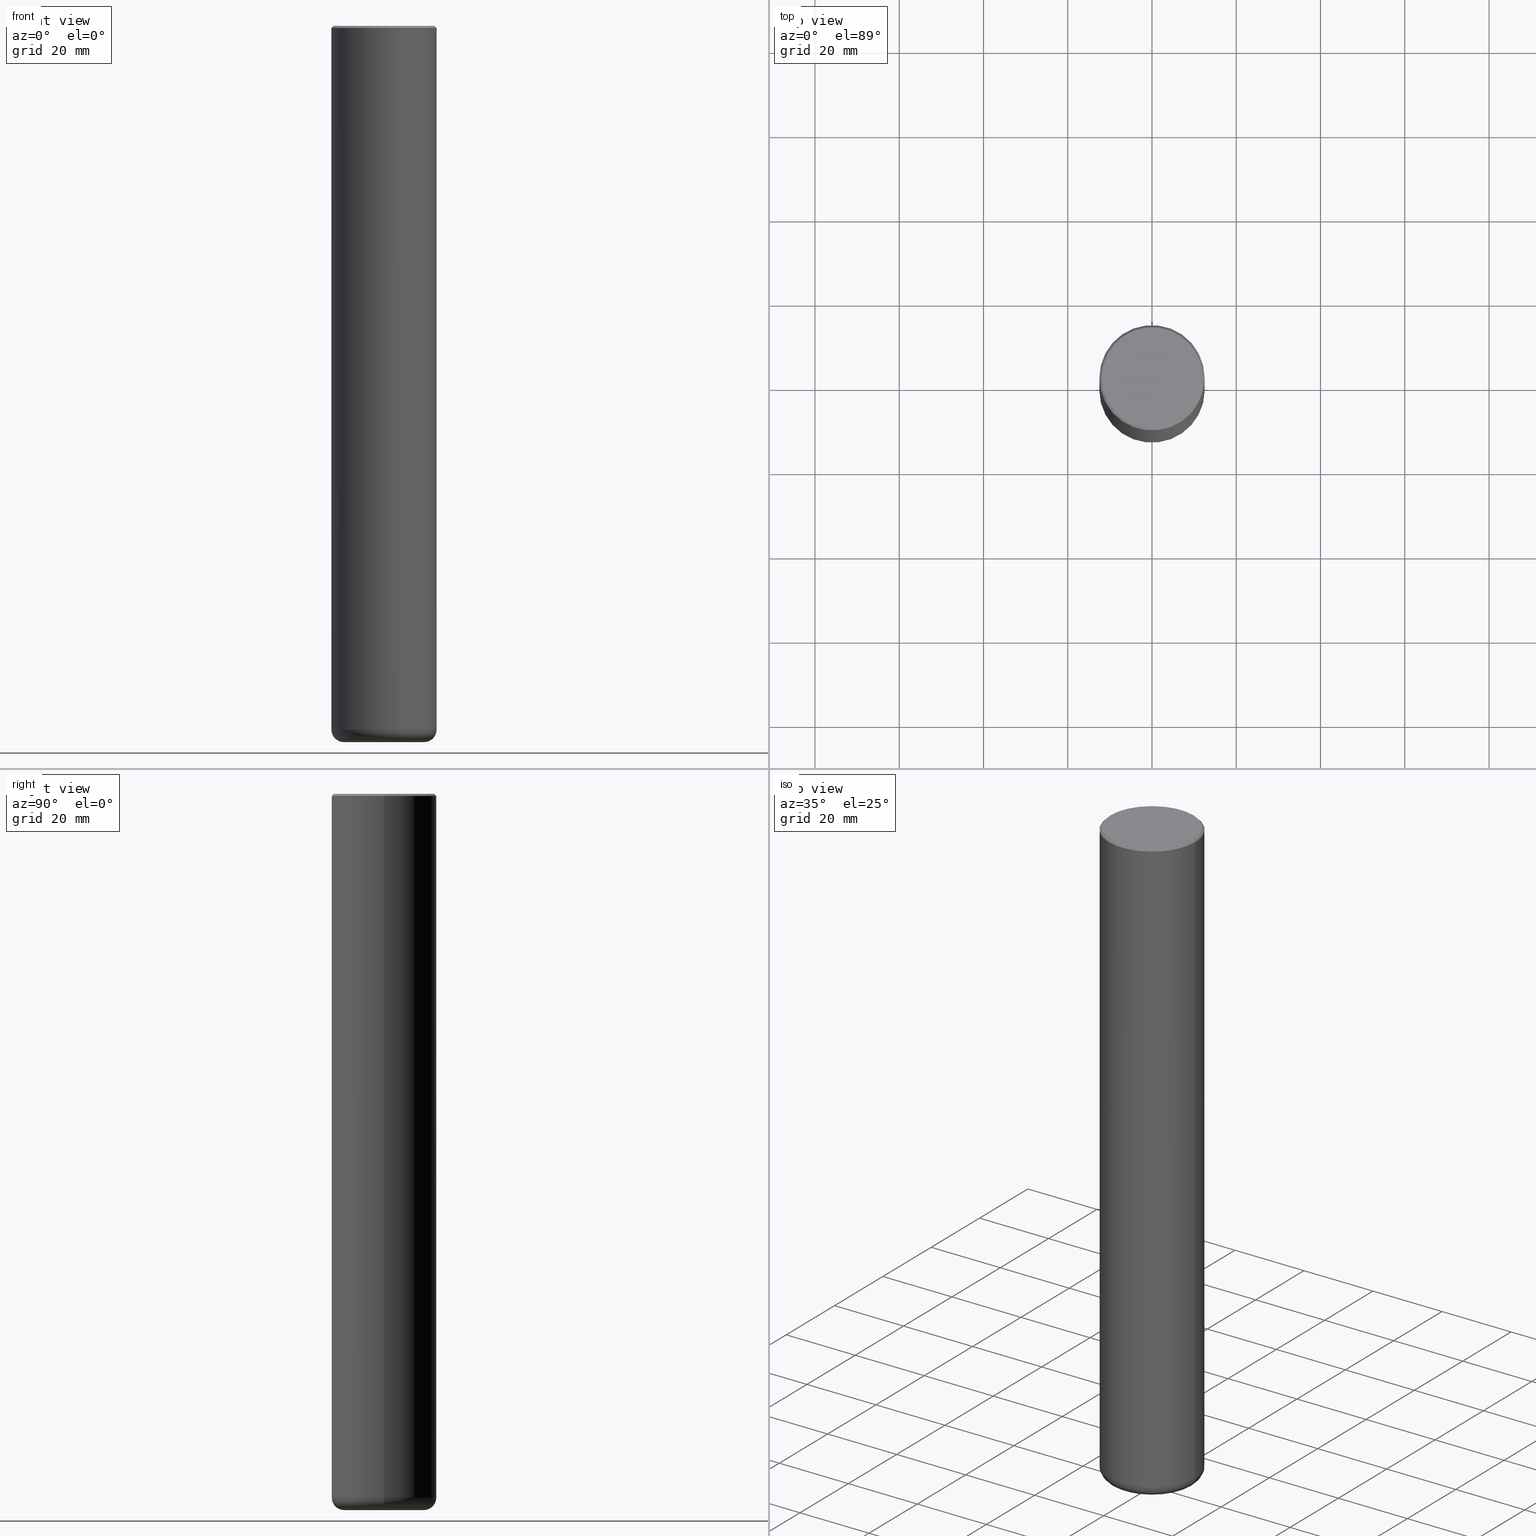
[diagram: canonical four-view strip — front | top / right | iso, engineering-drawing reading convention]
A machine part, canonical four-view strip (front | top / right | iso — engineering-drawing reading convention). The complete STEP part file that produces these views, byte-faithful:
ISO-10303-21;
HEADER;
FILE_DESCRIPTION (( 'STEP AP203' ),
    '1' );
FILE_NAME ('74911.STEP',
    '2024-05-02T19:30:10',
    ( '' ),
    ( '' ),
    'SwSTEP 2.0',
    'SolidWorks 2023',
    '' );
FILE_SCHEMA (( 'CONFIG_CONTROL_DESIGN' ));
ENDSEC;

DATA;
#1 = EDGE_CURVE ( 'NONE', #210, #290, #328, .T. ) ;
#2 = CARTESIAN_POINT ( 'NONE',  ( -6.889419334612450925E-45, 9.836264924510951028E-31, 2.817218243466271259E-16 ) ) ;
#3 = CARTESIAN_POINT ( 'NONE',  ( -0.4921499999999996988, -1.945885543258258788E-14, -6.574799999999999756 ) ) ;
#4 = CIRCLE ( 'NONE', #348, 0.4921500000000000319 ) ;
#5 = DIRECTION ( 'NONE',  ( -2.445468806185136877E-29, 3.491481338843145188E-15, 1.000000000000000000 ) ) ;
#6 = EDGE_CURVE ( 'NONE', #342, #290, #412, .T. ) ;
#7 = DIRECTION ( 'NONE',  ( -2.445468806185136877E-29, 3.491481338843145188E-15, 1.000000000000000000 ) ) ;
#8 = DIRECTION ( 'NONE',  ( -0.7071067811865453523, 2.468850131082234184E-15, -0.7071067811865496822 ) ) ;
#9 = CARTESIAN_POINT ( 'NONE',  ( 0.000000000000000000, 0.000000000000000000, 0.000000000000000000 ) ) ;
#10 = VECTOR ( 'NONE', #7, 39.37007874015748143 ) ;
#11 = APPROVAL_DATE_TIME ( #15, #96 ) ;
#12 = LINE ( 'NONE', #101, #360 ) ;
#13 = SHAPE_DEFINITION_REPRESENTATION ( #28, #114 ) ;
#14 = DIRECTION ( 'NONE',  ( 1.000000000000000000, -6.982962677686265922E-15, 0.000000000000000000 ) ) ;
#15 = DATE_AND_TIME ( #84, #89 ) ;
#16 = CARTESIAN_POINT ( 'NONE',  ( 3.002068150450346810E-28, -3.815684778453161736E-15, -6.692899999999999849 ) ) ;
#17 = DIRECTION ( 'NONE',  ( 1.000000000000000000, -6.982962677686265922E-15, 4.876176775795935793E-29 ) ) ;
#18 = ORIENTED_EDGE ( 'NONE', *, *, #1, .T. ) ;
#19 = AXIS2_PLACEMENT_3D ( 'NONE', #9, #247, #17 ) ;
#20 = CARTESIAN_POINT ( 'NONE',  ( 0.000000000000000000, 0.000000000000000000, 0.000000000000000000 ) ) ;
#21 = CALENDAR_DATE ( 2024, 2, 5 ) ;
#22 = ORIENTED_EDGE ( 'NONE', *, *, #133, .F. ) ;
#23 = ORIENTED_EDGE ( 'NONE', *, *, #71, .F. ) ;
#24 = EDGE_LOOP ( 'NONE', ( #90, #385 ) ) ;
#25 = TOROIDAL_SURFACE ( 'NONE', #164, 0.3740499999999999381, 0.1180999999999995248 ) ;
#26 = ORIENTED_EDGE ( 'NONE', *, *, #193, .F. ) ;
#27 = CC_DESIGN_APPROVAL ( #96, ( #245 ) ) ;
#28 = PRODUCT_DEFINITION_SHAPE ( 'NONE', 'NONE',  #263 ) ;
#29 = ORIENTED_EDGE ( 'NONE', *, *, #211, .T. ) ;
#30 = CIRCLE ( 'NONE', #228, 0.1180999999999994832 ) ;
#31 = APPROVAL_PERSON_ORGANIZATION ( #111, #279, #50 ) ;
#32 = DIRECTION ( 'NONE',  ( -6.982962677686266711E-15, -1.000000000000000000, 3.491481338843145583E-15 ) ) ;
#33 = CARTESIAN_POINT ( 'NONE',  ( 4.890937612370299433E-31, -6.982962677686328587E-17, -0.02000000000000010797 ) ) ;
#34 = LINE ( 'NONE', #232, #397 ) ;
#35 = VECTOR ( 'NONE', #369, 39.37007874015748143 ) ;
#36 = CARTESIAN_POINT ( 'NONE',  ( 0.4921500000000003094, -1.305534702220228032E-14, -2.754900000000000126 ) ) ;
#37 = DIRECTION ( 'NONE',  ( -2.445468806185136597E-29, 3.491481338843145583E-15, 1.000000000000000000 ) ) ;
#38 = EDGE_CURVE ( 'NONE', #351, #55, #30, .T. ) ;
#39 = DIRECTION ( 'NONE',  ( -2.445468806185136877E-29, 3.491481338843145188E-15, 1.000000000000000000 ) ) ;
#40 = CARTESIAN_POINT ( 'NONE',  ( 0.4921500000000000319, -3.446223716380123138E-15, -0.02000000000000010797 ) ) ;
#41 = APPROVAL_ROLE ( '' ) ;
#42 = DIRECTION ( 'NONE',  ( 1.000000000000000000, -6.982962677686265922E-15, 4.876176775795935793E-29 ) ) ;
#43 = DIRECTION ( 'NONE',  ( 1.000000000000000000, -6.982962677686265922E-15, 0.000000000000000000 ) ) ;
#44 = CIRCLE ( 'NONE', #184, 0.4721499999999997921 ) ;
#45 = VECTOR ( 'NONE', #8, 39.37007874015748143 ) ;
#46 = COORDINATED_UNIVERSAL_TIME_OFFSET ( 5, 0, .BEHIND. ) ;
#47 = DIRECTION ( 'NONE',  ( 1.000000000000000000, -6.982962677686265922E-15, 4.883557194083112901E-29 ) ) ;
#48 = CC_DESIGN_PERSON_AND_ORGANIZATION_ASSIGNMENT ( #72, #331, ( #191 ) ) ;
#49 = CARTESIAN_POINT ( 'NONE',  ( -0.4921500000000000319, 3.366835455046432873E-15, -0.02000000000000010797 ) ) ;
#50 = APPROVAL_ROLE ( '' ) ;
#51 = CARTESIAN_POINT ( 'NONE',  ( -6.889419334612450925E-45, 9.836264924510951028E-31, 2.817218243466271259E-16 ) ) ;
#52 = PERSON_AND_ORGANIZATION_ROLE ( 'design_owner' ) ;
#53 = ORIENTED_EDGE ( 'NONE', *, *, #133, .T. ) ;
#54 = DIRECTION ( 'NONE',  ( 1.000000000000000000, -6.982962677686265922E-15, 4.882029041999364017E-29 ) ) ;
#55 = VERTEX_POINT ( 'NONE', #197 ) ;
#56 = CC_DESIGN_SECURITY_CLASSIFICATION ( #245, ( #191 ) ) ;
#57 = EDGE_CURVE ( 'NONE', #384, #104, #44, .T. ) ;
#58 = AXIS2_PLACEMENT_3D ( 'NONE', #78, #138, #14 ) ;
#59 = ADVANCED_FACE ( 'NONE', ( #387 ), #122, .T. ) ;
#60 = DIRECTION ( 'NONE',  ( -1.000000000000000000, 6.982962677686265922E-15, -4.876176775795935793E-29 ) ) ;
#61 = AXIS2_PLACEMENT_3D ( 'NONE', #203, #231, #295 ) ;
#62 = CC_DESIGN_DATE_AND_TIME_ASSIGNMENT ( #304, #180, ( #245 ) ) ;
#63 = DIRECTION ( 'NONE',  ( 1.000000000000000000, -6.982962677686265133E-15, 0.000000000000000000 ) ) ;
#64 = LINE ( 'NONE', #325, #248 ) ;
#65 = EDGE_CURVE ( 'NONE', #116, #342, #64, .T. ) ;
#66 = DIRECTION ( 'NONE',  ( -1.000000000000000000, 7.105427357601001859E-15, 0.000000000000000000 ) ) ;
#67 = FACE_OUTER_BOUND ( 'NONE', #24, .T. ) ;
#68 = CALENDAR_DATE ( 2024, 2, 5 ) ;
#69 = DIRECTION ( 'NONE',  ( -2.445468806185136597E-29, 3.491481338843145583E-15, 1.000000000000000000 ) ) ;
#70 =( CONVERSION_BASED_UNIT ( 'INCH', #239 ) LENGTH_UNIT ( ) NAMED_UNIT ( #223 ) );
#71 = EDGE_CURVE ( 'NONE', #87, #351, #75, .T. ) ;
#72 = PERSON_AND_ORGANIZATION ( #356, #390 ) ;
#73 = DIRECTION ( 'NONE',  ( -2.445468806185136597E-29, 3.491481338843145583E-15, 1.000000000000000000 ) ) ;
#74 = APPROVAL_PERSON_ORGANIZATION ( #144, #170, #41 ) ;
#75 = CIRCLE ( 'NONE', #219, 0.3740499999999999381 ) ;
#76 = DATE_TIME_ROLE ( 'creation_date' ) ;
#77 = ORIENTED_EDGE ( 'NONE', *, *, #291, .T. ) ;
#78 = CARTESIAN_POINT ( 'NONE',  ( 6.739467482965618232E-29, -9.622173421717824390E-15, -2.755900000000000016 ) ) ;
#79 = CARTESIAN_POINT ( 'NONE',  ( 4.890937612370299433E-31, -6.982962677686328587E-17, -0.02000000000000010797 ) ) ;
#80 = ORIENTED_EDGE ( 'NONE', *, *, #298, .T. ) ;
#81 = ADVANCED_FACE ( 'NONE', ( #67 ), #230, .F. ) ;
#82 = DIRECTION ( 'NONE',  ( 1.000000000000000000, -6.982962677686264344E-15, 0.000000000000000000 ) ) ;
#83 = DIRECTION ( 'NONE',  ( 1.000000000000000000, 0.000000000000000000, 0.000000000000000000 ) ) ;
#84 = CALENDAR_DATE ( 2024, 2, 5 ) ;
#85 = VERTEX_POINT ( 'NONE', #235 ) ;
#86 = LINE ( 'NONE', #404, #229 ) ;
#87 = VERTEX_POINT ( 'NONE', #361 ) ;
#88 = AXIS2_PLACEMENT_3D ( 'NONE', #256, #366, #145 ) ;
#89 = LOCAL_TIME ( 15, 30, 10.00000000000000000, #403 ) ;
#90 = ORIENTED_EDGE ( 'NONE', *, *, #137, .T. ) ;
#91 = DESIGN_CONTEXT ( 'detailed design', #156, 'design' ) ;
#92 = ORIENTED_EDGE ( 'NONE', *, *, #284, .T. ) ;
#93 = CIRCLE ( 'NONE', #192, 0.1180999999999994832 ) ;
#94 = ORIENTED_EDGE ( 'NONE', *, *, #388, .F. ) ;
#95 = DIRECTION ( 'NONE',  ( -2.445468806185136597E-29, 3.491481338843145583E-15, 1.000000000000000000 ) ) ;
#96 = APPROVAL ( #381, 'UNSPECIFIED' ) ;
#97 = CARTESIAN_POINT ( 'NONE',  ( 0.4721499999999997921, -3.342703923013974974E-15, 2.817218243466503973E-16 ) ) ;
#98 = CIRCLE ( 'NONE', #272, 0.4921500000000003094 ) ;
#99 = CARTESIAN_POINT ( 'NONE',  ( 6.737022014159432629E-29, -9.618681940378981383E-15, -2.754900000000000126 ) ) ;
#100 = DIRECTION ( 'NONE',  ( 7.105427357601001859E-15, 1.000000000000000000, -3.491481338843145583E-15 ) ) ;
#101 = CARTESIAN_POINT ( 'NONE',  ( -0.4911499999999999755, -6.132342775032092501E-15, -2.755900000000000016 ) ) ;
#102 = PRODUCT_RELATED_PRODUCT_CATEGORY ( 'detail', '', ( #364 ) ) ;
#103 = FACE_OUTER_BOUND ( 'NONE', #118, .T. ) ;
#104 = VERTEX_POINT ( 'NONE', #97 ) ;
#105 = FACE_OUTER_BOUND ( 'NONE', #215, .T. ) ;
#106 = CONICAL_SURFACE ( 'NONE', #207, 0.4911499999999999755, 0.7853981633977213939 ) ;
#107 = PERSON_AND_ORGANIZATION_ROLE ( 'classification_officer' ) ;
#108 = DIRECTION ( 'NONE',  ( 2.438088387897960049E-29, -3.491481338843145188E-15, -1.000000000000000000 ) ) ;
#109 = DATE_AND_TIME ( #21, #123 ) ;
#110 = DIRECTION ( 'NONE',  ( -0.7071067811867406405, 7.493145998871051513E-15, 0.7071067811863543939 ) ) ;
#111 = PERSON_AND_ORGANIZATION ( #356, #390 ) ;
#112 = ORIENTED_EDGE ( 'NONE', *, *, #284, .F. ) ;
#113 = CARTESIAN_POINT ( 'NONE',  ( -0.4921499999999999764, -1.279204639012853613E-14, -2.755900000000000016 ) ) ;
#114 = ADVANCED_BREP_SHAPE_REPRESENTATION ( '74911', ( #396, #410, #220 ), #399 ) ;
#115 = PERSON_AND_ORGANIZATION ( #356, #390 ) ;
#116 = VERTEX_POINT ( 'NONE', #36 ) ;
#117 = PERSON_AND_ORGANIZATION ( #356, #390 ) ;
#118 = EDGE_LOOP ( 'NONE', ( #411, #53, #415, #94 ) ) ;
#119 = ADVANCED_FACE ( 'NONE', ( #354 ), #417, .T. ) ;
#120 = CARTESIAN_POINT ( 'NONE',  ( -0.4921500000000003094, -1.347319709534586880E-15, -2.754900000000000126 ) ) ;
#121 = ORIENTED_EDGE ( 'NONE', *, *, #161, .F. ) ;
#122 = CONICAL_SURFACE ( 'NONE', #61, 0.4911499999999999755, 0.7853981633977213939 ) ;
#123 = LOCAL_TIME ( 15, 30, 10.00000000000000000, #46 ) ;
#124 = ORIENTED_EDGE ( 'NONE', *, *, #211, .F. ) ;
#125 = EDGE_CURVE ( 'NONE', #116, #210, #98, .T. ) ;
#126 = VERTEX_POINT ( 'NONE', #3 ) ;
#127 = EDGE_LOOP ( 'NONE', ( #121, #321, #336, #26 ) ) ;
#128 = ADVANCED_FACE ( 'NONE', ( #226 ), #269, .F. ) ;
#129 = DIRECTION ( 'NONE',  ( 2.438088387897960049E-29, -3.491481338843145188E-15, -1.000000000000000000 ) ) ;
#130 = DIRECTION ( 'NONE',  ( 1.000000000000000000, -6.982962677686265922E-15, 0.000000000000000000 ) ) ;
#131 = APPLICATION_CONTEXT ( 'configuration controlled 3d designs of mechanical parts and assemblies' ) ;
#132 = LINE ( 'NONE', #392, #10 ) ;
#133 = EDGE_CURVE ( 'NONE', #126, #261, #132, .T. ) ;
#134 = CARTESIAN_POINT ( 'NONE',  ( 0.4921499999999999764, -1.305883850354112017E-14, -2.755900000000000016 ) ) ;
#135 = CARTESIAN_POINT ( 'NONE',  ( -0.4911499999999999755, -6.127044320683869310E-15, -2.755900000000000016 ) ) ;
#136 = CARTESIAN_POINT ( 'NONE',  ( 0.3740499999999999381, -2.598011264233183059E-14, -6.692899999999998961 ) ) ;
#137 = EDGE_CURVE ( 'NONE', #157, #261, #257, .T. ) ;
#138 = DIRECTION ( 'NONE',  ( -2.445468806185136597E-29, 3.491481338843145583E-15, 1.000000000000000000 ) ) ;
#139 = CARTESIAN_POINT ( 'NONE',  ( 1.607846830690603466E-28, -2.295579150662591525E-14, -6.574799999999999756 ) ) ;
#140 = CIRCLE ( 'NONE', #88, 0.3740499999999999381 ) ;
#141 = SECURITY_CLASSIFICATION_LEVEL ( 'unclassified' ) ;
#142 = DIRECTION ( 'NONE',  ( -1.000000000000000000, 6.982962677686265922E-15, -4.876176775795935793E-29 ) ) ;
#143 = DIRECTION ( 'NONE',  ( -2.445468806185136597E-29, 3.491481338843145583E-15, 1.000000000000000000 ) ) ;
#144 = PERSON_AND_ORGANIZATION ( #356, #390 ) ;
#145 = DIRECTION ( 'NONE',  ( 1.000000000000000000, -6.982962677686265133E-15, 0.000000000000000000 ) ) ;
#146 = CARTESIAN_POINT ( 'NONE',  ( 6.737022014159432629E-29, -9.618681940378981383E-15, -2.754900000000000126 ) ) ;
#147 = EDGE_CURVE ( 'NONE', #85, #116, #34, .T. ) ;
#148 = CIRCLE ( 'NONE', #353, 0.4921500000000000319 ) ;
#149 = DIRECTION ( 'NONE',  ( 1.000000000000000000, -6.982962677686266711E-15, 4.876176775795935232E-29 ) ) ;
#150 = ORIENTED_EDGE ( 'NONE', *, *, #322, .F. ) ;
#151 = EDGE_LOOP ( 'NONE', ( #258, #347, #286, #250 ) ) ;
#152 = ORIENTED_EDGE ( 'NONE', *, *, #341, .F. ) ;
#153 = AXIS2_PLACEMENT_3D ( 'NONE', #305, #278, #42 ) ;
#154 = CC_DESIGN_PERSON_AND_ORGANIZATION_ASSIGNMENT ( #206, #249, ( #191 ) ) ;
#155 = ORIENTED_EDGE ( 'NONE', *, *, #388, .T. ) ;
#156 = APPLICATION_CONTEXT ( 'configuration controlled 3d designs of mechanical parts and assemblies' ) ;
#157 = VERTEX_POINT ( 'NONE', #134 ) ;
#158 = AXIS2_PLACEMENT_3D ( 'NONE', #146, #37, #393 ) ;
#159 = LOCAL_TIME ( 15, 30, 10.00000000000000000, #307 ) ;
#160 = DIRECTION ( 'NONE',  ( -2.445468806185136597E-29, 3.491481338843145583E-15, 1.000000000000000000 ) ) ;
#161 = EDGE_CURVE ( 'NONE', #87, #126, #93, .T. ) ;
#162 = DIRECTION ( 'NONE',  ( 2.445468806185136597E-29, -3.491481338843145583E-15, -1.000000000000000000 ) ) ;
#163 = DIRECTION ( 'NONE',  ( 0.7071067811867406405, -2.468850131084279700E-15, 0.7071067811863543939 ) ) ;
#164 = AXIS2_PLACEMENT_3D ( 'NONE', #340, #69, #47 ) ;
#165 = CC_DESIGN_PERSON_AND_ORGANIZATION_ASSIGNMENT ( #171, #107, ( #245 ) ) ;
#166 = DIRECTION ( 'NONE',  ( -2.445468806185136597E-29, 3.491481338843145583E-15, 1.000000000000000000 ) ) ;
#167 = DIRECTION ( 'NONE',  ( -1.000000000000000000, 6.982962677686265922E-15, 0.000000000000000000 ) ) ;
#168 = CARTESIAN_POINT ( 'NONE',  ( 6.739467482965618232E-29, -9.622173421717824390E-15, -2.755900000000000016 ) ) ;
#169 = DIRECTION ( 'NONE',  ( 1.000000000000000000, -6.982962677686265922E-15, 4.876176775795935793E-29 ) ) ;
#170 = APPROVAL ( #376, 'UNSPECIFIED' ) ;
#171 = PERSON_AND_ORGANIZATION ( #356, #390 ) ;
#172 = DIRECTION ( 'NONE',  ( -2.445468806185136597E-29, 3.491481338843145583E-15, 1.000000000000000000 ) ) ;
#173 = AXIS2_PLACEMENT_3D ( 'NONE', #391, #357, #130 ) ;
#174 = MECHANICAL_CONTEXT ( 'NONE', #131, 'mechanical' ) ;
#175 = DIRECTION ( 'NONE',  ( 0.7071067811865453523, -7.319954787623248157E-15, -0.7071067811865496822 ) ) ;
#176 = FACE_OUTER_BOUND ( 'NONE', #414, .T. ) ;
#177 = ORIENTED_EDGE ( 'NONE', *, *, #201, .F. ) ;
#178 = DIRECTION ( 'NONE',  ( -2.445468806185136597E-29, 3.491481338843145583E-15, 1.000000000000000000 ) ) ;
#179 = CARTESIAN_POINT ( 'NONE',  ( 6.739467482965618232E-29, -9.622173421717824390E-15, -2.755900000000000016 ) ) ;
#180 = DATE_TIME_ROLE ( 'classification_date' ) ;
#181 = ORIENTED_EDGE ( 'NONE', *, *, #1, .F. ) ;
#182 = CYLINDRICAL_SURFACE ( 'NONE', #323, 0.4921500000000001984 ) ;
#183 = CC_DESIGN_PERSON_AND_ORGANIZATION_ASSIGNMENT ( #115, #313, ( #263 ) ) ;
#184 = AXIS2_PLACEMENT_3D ( 'NONE', #2, #160, #264 ) ;
#185 = ORIENTED_EDGE ( 'NONE', *, *, #242, .F. ) ;
#186 = DIRECTION ( 'NONE',  ( -2.445468806185136597E-29, 3.491481338843145583E-15, 1.000000000000000000 ) ) ;
#187 = UNCERTAINTY_MEASURE_WITH_UNIT (LENGTH_MEASURE( 1.000000000000000082E-05 ), #70, 'distance_accuracy_value', 'NONE');
#188 = VERTEX_POINT ( 'NONE', #135 ) ;
#189 = EDGE_LOOP ( 'NONE', ( #309, #92 ) ) ;
#190 = CC_DESIGN_DATE_AND_TIME_ASSIGNMENT ( #109, #76, ( #263 ) ) ;
#191 = PRODUCT_DEFINITION_FORMATION_WITH_SPECIFIED_SOURCE ( 'ANY', '', #364, .NOT_KNOWN. ) ;
#192 = AXIS2_PLACEMENT_3D ( 'NONE', #268, #100, #66 ) ;
#193 = EDGE_CURVE ( 'NONE', #126, #55, #148, .T. ) ;
#194 = CIRCLE ( 'NONE', #373, 0.4921500000000000319 ) ;
#195 = CARTESIAN_POINT ( 'NONE',  ( -0.4921500000000001984, 3.496936074043334475E-15, -2.420853904668952630E-29 ) ) ;
#196 = ADVANCED_FACE ( 'NONE', ( #103 ), #274, .T. ) ;
#197 = CARTESIAN_POINT ( 'NONE',  ( 0.4921499999999996988, -2.639245658844920945E-14, -6.574799999999999756 ) ) ;
#198 = DIRECTION ( 'NONE',  ( -2.445468806185136597E-29, 3.491481338843145583E-15, 1.000000000000000000 ) ) ;
#199 = CARTESIAN_POINT ( 'NONE',  ( 1.607846830690603466E-28, -2.295579150662591525E-14, -6.574799999999999756 ) ) ;
#200 = CIRCLE ( 'NONE', #266, 0.4721499999999997921 ) ;
#201 = EDGE_CURVE ( 'NONE', #85, #188, #292, .T. ) ;
#202 = DIRECTION ( 'NONE',  ( 2.445468806185136597E-29, -3.491481338843145583E-15, -1.000000000000000000 ) ) ;
#203 = CARTESIAN_POINT ( 'NONE',  ( 6.739467482965618232E-29, -9.622173421717824390E-15, -2.755900000000000016 ) ) ;
#204 = CARTESIAN_POINT ( 'NONE',  ( 6.739467482965618232E-29, -9.622173421717824390E-15, -2.755900000000000016 ) ) ;
#205 = FACE_OUTER_BOUND ( 'NONE', #402, .T. ) ;
#206 = PERSON_AND_ORGANIZATION ( #356, #390 ) ;
#207 = AXIS2_PLACEMENT_3D ( 'NONE', #238, #73, #82 ) ;
#208 = LOCAL_TIME ( 15, 30, 10.00000000000000000, #367 ) ;
#209 = APPROVAL_STATUS ( 'not_yet_approved' ) ;
#210 = VERTEX_POINT ( 'NONE', #120 ) ;
#211 = EDGE_CURVE ( 'NONE', #104, #342, #86, .T. ) ;
#212 = DIRECTION ( 'NONE',  ( 1.000000000000000000, -6.982962677686264344E-15, 0.000000000000000000 ) ) ;
#213 = ORIENTED_EDGE ( 'NONE', *, *, #147, .F. ) ;
#214 = DIRECTION ( 'NONE',  ( -2.445468806185136597E-29, 3.491481338843145583E-15, 1.000000000000000000 ) ) ;
#215 = EDGE_LOOP ( 'NONE', ( #177, #244 ) ) ;
#216 = FACE_OUTER_BOUND ( 'NONE', #254, .T. ) ;
#217 = AXIS2_PLACEMENT_3D ( 'NONE', #267, #297, #324 ) ;
#218 = ADVANCED_FACE ( 'NONE', ( #216 ), #282, .T. ) ;
#219 = AXIS2_PLACEMENT_3D ( 'NONE', #394, #198, #63 ) ;
#220 = AXIS2_PLACEMENT_3D ( 'NONE', #252, #380, #83 ) ;
#221 = ORIENTED_EDGE ( 'NONE', *, *, #65, .F. ) ;
#222 = EDGE_LOOP ( 'NONE', ( #152, #77, #265, #150 ) ) ;
#223 = DIMENSIONAL_EXPONENTS ( 1.000000000000000000, 0.000000000000000000, 0.000000000000000000, 0.000000000000000000, 0.000000000000000000, 0.000000000000000000, 0.000000000000000000 ) ;
#224 = ADVANCED_FACE ( 'NONE', ( #379 ), #311, .T. ) ;
#225 = ORIENTED_EDGE ( 'NONE', *, *, #125, .T. ) ;
#226 = FACE_OUTER_BOUND ( 'NONE', #189, .T. ) ;
#227 = ADVANCED_FACE ( 'NONE', ( #374 ), #106, .T. ) ;
#228 = AXIS2_PLACEMENT_3D ( 'NONE', #300, #32, #329 ) ;
#229 = VECTOR ( 'NONE', #175, 39.37007874015748143 ) ;
#230 = PLANE ( 'NONE',  #418 ) ;
#231 = DIRECTION ( 'NONE',  ( -2.445468806185136597E-29, 3.491481338843145583E-15, 1.000000000000000000 ) ) ;
#232 = CARTESIAN_POINT ( 'NONE',  ( 0.4911499999999999755, -1.305185554086343257E-14, -2.755900000000000016 ) ) ;
#233 = VECTOR ( 'NONE', #39, 39.37007874015748143 ) ;
#234 = CIRCLE ( 'NONE', #58, 0.4921499999999999764 ) ;
#235 = CARTESIAN_POINT ( 'NONE',  ( 0.4911499999999999755, -1.305185554086343257E-14, -2.755900000000000016 ) ) ;
#236 = CC_DESIGN_APPROVAL ( #279, ( #191 ) ) ;
#237 = PLANE ( 'NONE',  #283 ) ;
#238 = CARTESIAN_POINT ( 'NONE',  ( 6.739467482965618232E-29, -9.622173421717824390E-15, -2.755900000000000016 ) ) ;
#239 = LENGTH_MEASURE_WITH_UNIT ( LENGTH_MEASURE( 0.02539999999999999897 ), #401 );
#240 = DATE_AND_TIME ( #68, #208 ) ;
#241 = LINE ( 'NONE', #395, #35 ) ;
#242 = EDGE_CURVE ( 'NONE', #351, #87, #140, .T. ) ;
#243 = CALENDAR_DATE ( 2024, 2, 5 ) ;
#244 = ORIENTED_EDGE ( 'NONE', *, *, #291, .F. ) ;
#245 = SECURITY_CLASSIFICATION ( '', '', #141 ) ;
#246 = DIRECTION ( 'NONE',  ( 1.000000000000000000, -6.982962677686266711E-15, 4.876176775795935232E-29 ) ) ;
#247 = DIRECTION ( 'NONE',  ( -2.445468806185136597E-29, 3.491481338843145583E-15, 1.000000000000000000 ) ) ;
#248 = VECTOR ( 'NONE', #5, 39.37007874015748143 ) ;
#249 = PERSON_AND_ORGANIZATION_ROLE ( 'design_supplier' ) ;
#250 = ORIENTED_EDGE ( 'NONE', *, *, #38, .F. ) ;
#251 = DIRECTION ( 'NONE',  ( 1.000000000000000000, -6.982962677686264344E-15, 0.000000000000000000 ) ) ;
#252 = CARTESIAN_POINT ( 'NONE',  ( 0.000000000000000000, 0.000000000000000000, 0.000000000000000000 ) ) ;
#253 = COORDINATED_UNIVERSAL_TIME_OFFSET ( 5, 0, .BEHIND. ) ;
#254 = EDGE_LOOP ( 'NONE', ( #181, #316, #345, #413 ) ) ;
#255 = ADVANCED_FACE ( 'NONE', ( #273 ), #25, .T. ) ;
#256 = CARTESIAN_POINT ( 'NONE',  ( 1.636727817291649742E-28, -2.336813545274328465E-14, -6.692899999999998961 ) ) ;
#257 = CIRCLE ( 'NONE', #173, 0.4921499999999999764 ) ;
#258 = ORIENTED_EDGE ( 'NONE', *, *, #242, .T. ) ;
#259 = EDGE_LOOP ( 'NONE', ( #277, #339, #318, #213 ) ) ;
#260 = EDGE_CURVE ( 'NONE', #261, #157, #234, .T. ) ;
#261 = VERTEX_POINT ( 'NONE', #113 ) ;
#262 = AXIS2_PLACEMENT_3D ( 'NONE', #139, #375, #358 ) ;
#263 = PRODUCT_DEFINITION ( 'UNKNOWN', '', #191, #91 ) ;
#264 = DIRECTION ( 'NONE',  ( 1.000000000000000000, -6.982962677686265922E-15, 4.882029041999364017E-29 ) ) ;
#265 = ORIENTED_EDGE ( 'NONE', *, *, #147, .T. ) ;
#266 = AXIS2_PLACEMENT_3D ( 'NONE', #51, #178, #54 ) ;
#267 = CARTESIAN_POINT ( 'NONE',  ( 4.890937612370299433E-31, -6.982962677686328587E-17, -0.02000000000000010797 ) ) ;
#268 = CARTESIAN_POINT ( 'NONE',  ( -0.3740499999999999381, -2.029800640351526055E-14, -6.574799999999999756 ) ) ;
#269 = PLANE ( 'NONE',  #343 ) ;
#270 = CARTESIAN_POINT ( 'NONE',  ( 4.890937612370299433E-31, -6.982962677686328587E-17, -0.02000000000000010797 ) ) ;
#271 = APPLICATION_PROTOCOL_DEFINITION ( 'international standard', 'config_control_design', 1994, #131 ) ;
#272 = AXIS2_PLACEMENT_3D ( 'NONE', #99, #95, #326 ) ;
#273 = FACE_OUTER_BOUND ( 'NONE', #127, .T. ) ;
#274 = CYLINDRICAL_SURFACE ( 'NONE', #153, 0.4921499999999999764 ) ;
#275 = CARTESIAN_POINT ( 'NONE',  ( 1.607846830690603466E-28, -2.295579150662591525E-14, -6.574799999999999756 ) ) ;
#276 = APPROVAL_ROLE ( '' ) ;
#277 = ORIENTED_EDGE ( 'NONE', *, *, #201, .T. ) ;
#278 = DIRECTION ( 'NONE',  ( -2.445468806185136597E-29, 3.491481338843145583E-15, 1.000000000000000000 ) ) ;
#279 = APPROVAL ( #209, 'UNSPECIFIED' ) ;
#280 = DATE_AND_TIME ( #243, #159 ) ;
#281 = ORIENTED_EDGE ( 'NONE', *, *, #298, .F. ) ;
#282 = CYLINDRICAL_SURFACE ( 'NONE', #289, 0.4921500000000001984 ) ;
#283 = AXIS2_PLACEMENT_3D ( 'NONE', #179, #303, #169 ) ;
#284 = EDGE_CURVE ( 'NONE', #104, #384, #200, .T. ) ;
#285 = LINE ( 'NONE', #408, #45 ) ;
#286 = ORIENTED_EDGE ( 'NONE', *, *, #362, .F. ) ;
#287 = ORIENTED_EDGE ( 'NONE', *, *, #6, .F. ) ;
#288 = ORIENTED_EDGE ( 'NONE', *, *, #193, .T. ) ;
#289 = AXIS2_PLACEMENT_3D ( 'NONE', #368, #214, #246 ) ;
#290 = VERTEX_POINT ( 'NONE', #49 ) ;
#291 = EDGE_CURVE ( 'NONE', #188, #85, #296, .T. ) ;
#292 = CIRCLE ( 'NONE', #389, 0.4911499999999999755 ) ;
#293 = ADVANCED_FACE ( 'NONE', ( #337 ), #182, .T. ) ;
#294 = DIRECTION ( 'NONE',  ( -1.000000000000000000, 6.982962677686265922E-15, 0.000000000000000000 ) ) ;
#295 = DIRECTION ( 'NONE',  ( 1.000000000000000000, -6.982962677686264344E-15, 0.000000000000000000 ) ) ;
#296 = CIRCLE ( 'NONE', #383, 0.4911499999999999755 ) ;
#297 = DIRECTION ( 'NONE',  ( -2.445468806185136597E-29, 3.491481338843145583E-15, 1.000000000000000000 ) ) ;
#298 = EDGE_CURVE ( 'NONE', #384, #290, #285, .T. ) ;
#299 = DIRECTION ( 'NONE',  ( 1.000000000000000000, -6.982962677686265133E-15, 0.000000000000000000 ) ) ;
#300 = CARTESIAN_POINT ( 'NONE',  ( 0.3740499999999999381, -2.556776869621446119E-14, -6.574799999999999756 ) ) ;
#301 = PERSON_AND_ORGANIZATION ( #356, #390 ) ;
#302 = TOROIDAL_SURFACE ( 'NONE', #262, 0.3740499999999999381, 0.1180999999999995248 ) ;
#303 = DIRECTION ( 'NONE',  ( -2.438088387897960049E-29, 3.491481338843145188E-15, 1.000000000000000000 ) ) ;
#304 = DATE_AND_TIME ( #333, #370 ) ;
#305 = CARTESIAN_POINT ( 'NONE',  ( 0.000000000000000000, 0.000000000000000000, 0.000000000000000000 ) ) ;
#306 = FACE_OUTER_BOUND ( 'NONE', #151, .T. ) ;
#307 = COORDINATED_UNIVERSAL_TIME_OFFSET ( 5, 0, .BEHIND. ) ;
#308 = DIRECTION ( 'NONE',  ( -2.445468806185136597E-29, 3.491481338843145583E-15, 1.000000000000000000 ) ) ;
#309 = ORIENTED_EDGE ( 'NONE', *, *, #57, .T. ) ;
#310 = EDGE_LOOP ( 'NONE', ( #225, #18, #287, #221 ) ) ;
#311 = PLANE ( 'NONE',  #407 ) ;
#312 = AXIS2_PLACEMENT_3D ( 'NONE', #79, #202, #167 ) ;
#313 = PERSON_AND_ORGANIZATION_ROLE ( 'creator' ) ;
#314 = ORIENTED_EDGE ( 'NONE', *, *, #6, .T. ) ;
#315 = EDGE_LOOP ( 'NONE', ( #185, #23 ) ) ;
#316 = ORIENTED_EDGE ( 'NONE', *, *, #322, .T. ) ;
#317 = ADVANCED_FACE ( 'NONE', ( #176 ), #330, .T. ) ;
#318 = ORIENTED_EDGE ( 'NONE', *, *, #125, .F. ) ;
#319 = CIRCLE ( 'NONE', #158, 0.4921500000000003094 ) ;
#320 = ORIENTED_EDGE ( 'NONE', *, *, #378, .T. ) ;
#321 = ORIENTED_EDGE ( 'NONE', *, *, #71, .T. ) ;
#322 = EDGE_CURVE ( 'NONE', #210, #116, #319, .T. ) ;
#323 = AXIS2_PLACEMENT_3D ( 'NONE', #20, #186, #149 ) ;
#324 = DIRECTION ( 'NONE',  ( 1.000000000000000000, -6.982962677686265922E-15, 0.000000000000000000 ) ) ;
#325 = CARTESIAN_POINT ( 'NONE',  ( 0.4921500000000001984, -3.436665081823297354E-15, 2.399810400207970443E-29 ) ) ;
#326 = DIRECTION ( 'NONE',  ( 1.000000000000000000, -6.982962677686265922E-15, 0.000000000000000000 ) ) ;
#327 = AXIS2_PLACEMENT_3D ( 'NONE', #33, #162, #294 ) ;
#328 = LINE ( 'NONE', #195, #233 ) ;
#329 = DIRECTION ( 'NONE',  ( 1.000000000000000000, -6.982962677686270655E-15, 0.000000000000000000 ) ) ;
#330 = CYLINDRICAL_SURFACE ( 'NONE', #19, 0.4921499999999999764 ) ;
#331 = PERSON_AND_ORGANIZATION_ROLE ( 'creator' ) ;
#332 =( NAMED_UNIT ( * ) PLANE_ANGLE_UNIT ( ) SI_UNIT ( $, .RADIAN. ) );
#333 = CALENDAR_DATE ( 2024, 2, 5 ) ;
#334 = CONICAL_SURFACE ( 'NONE', #312, 0.4921500000000000319, 0.7853981633974452814 ) ;
#335 = DIRECTION ( 'NONE',  ( 1.000000000000000000, -6.982962677686265133E-15, 0.000000000000000000 ) ) ;
#336 = ORIENTED_EDGE ( 'NONE', *, *, #38, .T. ) ;
#337 = FACE_OUTER_BOUND ( 'NONE', #310, .T. ) ;
#338 =( NAMED_UNIT ( * ) SI_UNIT ( $, .STERADIAN. ) SOLID_ANGLE_UNIT ( ) );
#339 = ORIENTED_EDGE ( 'NONE', *, *, #341, .T. ) ;
#340 = CARTESIAN_POINT ( 'NONE',  ( 1.607846830690603466E-28, -2.295579150662591525E-14, -6.574799999999999756 ) ) ;
#341 = EDGE_CURVE ( 'NONE', #188, #210, #12, .T. ) ;
#342 = VERTEX_POINT ( 'NONE', #40 ) ;
#343 = AXIS2_PLACEMENT_3D ( 'NONE', #352, #355, #60 ) ;
#344 = CC_DESIGN_APPROVAL ( #170, ( #263 ) ) ;
#345 = ORIENTED_EDGE ( 'NONE', *, *, #65, .T. ) ;
#346 = ADVANCED_FACE ( 'NONE', ( #306 ), #302, .T. ) ;
#347 = ORIENTED_EDGE ( 'NONE', *, *, #161, .T. ) ;
#348 = AXIS2_PLACEMENT_3D ( 'NONE', #270, #405, #43 ) ;
#349 = APPROVAL_PERSON_ORGANIZATION ( #301, #96, #276 ) ;
#350 = ADVANCED_FACE ( 'NONE', ( #205 ), #334, .T. ) ;
#351 = VERTEX_POINT ( 'NONE', #136 ) ;
#352 = CARTESIAN_POINT ( 'NONE',  ( 3.297005828269569180E-15, 0.4721499999999997921, -1.507642001961476820E-15 ) ) ;
#353 = AXIS2_PLACEMENT_3D ( 'NONE', #199, #166, #299 ) ;
#354 = FACE_OUTER_BOUND ( 'NONE', #382, .T. ) ;
#355 = DIRECTION ( 'NONE',  ( 2.438088387897960049E-29, -3.491481338843145188E-15, -1.000000000000000000 ) ) ;
#356 = PERSON ( 'UNSPECIFIED', 'UNSPECIFIED', 'UNSPECIFIED', ('UNSPECIFIED'), ('UNSPECIFIED'), ('UNSPECIFIED') ) ;
#357 = DIRECTION ( 'NONE',  ( -2.445468806185136597E-29, 3.491481338843145583E-15, 1.000000000000000000 ) ) ;
#358 = DIRECTION ( 'NONE',  ( 1.000000000000000000, -6.982962677686265922E-15, 4.883557194083112901E-29 ) ) ;
#359 = CLOSED_SHELL ( 'NONE', ( #59, #293, #350, #119, #218, #227, #416, #128 ) ) ;
#360 = VECTOR ( 'NONE', #110, 39.37007874015748143 ) ;
#361 = CARTESIAN_POINT ( 'NONE',  ( -0.3740499999999999381, -2.008460289110761207E-14, -6.692899999999998961 ) ) ;
#362 = EDGE_CURVE ( 'NONE', #55, #126, #194, .T. ) ;
#363 = CARTESIAN_POINT ( 'NONE',  ( -0.4721499999999997921, 3.331920641658001618E-15, 2.817218243466039531E-16 ) ) ;
#364 = PRODUCT ( '74911', '74911', '', ( #174 ) ) ;
#365 = APPLICATION_PROTOCOL_DEFINITION ( 'international standard', 'config_control_design', 1994, #156 ) ;
#366 = DIRECTION ( 'NONE',  ( -2.445468806185136597E-29, 3.491481338843145583E-15, 1.000000000000000000 ) ) ;
#367 = COORDINATED_UNIVERSAL_TIME_OFFSET ( 5, 0, .BEHIND. ) ;
#368 = CARTESIAN_POINT ( 'NONE',  ( 0.000000000000000000, 0.000000000000000000, 0.000000000000000000 ) ) ;
#369 = DIRECTION ( 'NONE',  ( -2.445468806185136877E-29, 3.491481338843145188E-15, 1.000000000000000000 ) ) ;
#370 = LOCAL_TIME ( 15, 30, 10.00000000000000000, #253 ) ;
#371 = APPROVAL_DATE_TIME ( #280, #170 ) ;
#372 = ORIENTED_EDGE ( 'NONE', *, *, #57, .F. ) ;
#373 = AXIS2_PLACEMENT_3D ( 'NONE', #275, #143, #335 ) ;
#374 = FACE_OUTER_BOUND ( 'NONE', #222, .T. ) ;
#375 = DIRECTION ( 'NONE',  ( -2.445468806185136597E-29, 3.491481338843145583E-15, 1.000000000000000000 ) ) ;
#376 = APPROVAL_STATUS ( 'not_yet_approved' ) ;
#377 = ORIENTED_EDGE ( 'NONE', *, *, #260, .F. ) ;
#378 = EDGE_CURVE ( 'NONE', #290, #342, #4, .T. ) ;
#379 = FACE_OUTER_BOUND ( 'NONE', #315, .T. ) ;
#380 = DIRECTION ( 'NONE',  ( 0.000000000000000000, 0.000000000000000000, 1.000000000000000000 ) ) ;
#381 = APPROVAL_STATUS ( 'not_yet_approved' ) ;
#382 = EDGE_LOOP ( 'NONE', ( #124, #372, #80, #320 ) ) ;
#383 = AXIS2_PLACEMENT_3D ( 'NONE', #204, #308, #212 ) ;
#384 = VERTEX_POINT ( 'NONE', #363 ) ;
#385 = ORIENTED_EDGE ( 'NONE', *, *, #260, .T. ) ;
#386 = DIRECTION ( 'NONE',  ( -1.000000000000000000, 6.982962677686265922E-15, -4.876176775795935793E-29 ) ) ;
#387 = FACE_OUTER_BOUND ( 'NONE', #259, .T. ) ;
#388 = EDGE_CURVE ( 'NONE', #55, #157, #241, .T. ) ;
#389 = AXIS2_PLACEMENT_3D ( 'NONE', #400, #172, #251 ) ;
#390 = ORGANIZATION ( 'UNSPECIFIED', 'UNSPECIFIED', '' ) ;
#391 = CARTESIAN_POINT ( 'NONE',  ( 6.739467482965618232E-29, -9.622173421717824390E-15, -2.755900000000000016 ) ) ;
#392 = CARTESIAN_POINT ( 'NONE',  ( -0.4921499999999999764, 3.496936074043332897E-15, -2.420853904668951509E-29 ) ) ;
#393 = DIRECTION ( 'NONE',  ( 1.000000000000000000, -6.982962677686265922E-15, 0.000000000000000000 ) ) ;
#394 = CARTESIAN_POINT ( 'NONE',  ( 1.636727817291649742E-28, -2.336813545274328465E-14, -6.692899999999998961 ) ) ;
#395 = CARTESIAN_POINT ( 'NONE',  ( 0.4921499999999999764, -3.436665081823295777E-15, 2.399810400207969603E-29 ) ) ;
#396 = MANIFOLD_SOLID_BREP ( 'Body-Move/Copy2[1]', #406 ) ;
#397 = VECTOR ( 'NONE', #163, 39.37007874015748143 ) ;
#398 = APPROVAL_DATE_TIME ( #240, #279 ) ;
#399 =( GEOMETRIC_REPRESENTATION_CONTEXT ( 3 ) GLOBAL_UNCERTAINTY_ASSIGNED_CONTEXT ( ( #187 ) ) GLOBAL_UNIT_ASSIGNED_CONTEXT ( ( #70, #332, #338 ) ) REPRESENTATION_CONTEXT ( 'NONE', 'WORKASPACE' ) );
#400 = CARTESIAN_POINT ( 'NONE',  ( 6.739467482965618232E-29, -9.622173421717824390E-15, -2.755900000000000016 ) ) ;
#401 =( LENGTH_UNIT ( ) NAMED_UNIT ( * ) SI_UNIT ( $, .METRE. ) );
#402 = EDGE_LOOP ( 'NONE', ( #112, #29, #314, #281 ) ) ;
#403 = COORDINATED_UNIVERSAL_TIME_OFFSET ( 5, 0, .BEHIND. ) ;
#404 = CARTESIAN_POINT ( 'NONE',  ( 0.4921500000000000319, -3.446223716380123138E-15, -0.02000000000000010797 ) ) ;
#405 = DIRECTION ( 'NONE',  ( -2.445468806185136597E-29, 3.491481338843145583E-15, 1.000000000000000000 ) ) ;
#406 = CLOSED_SHELL ( 'NONE', ( #196, #346, #81, #317, #255, #224 ) ) ;
#407 = AXIS2_PLACEMENT_3D ( 'NONE', #16, #108, #142 ) ;
#408 = CARTESIAN_POINT ( 'NONE',  ( -0.4921500000000000319, 3.366835455046432873E-15, -0.02000000000000010797 ) ) ;
#409 = CC_DESIGN_PERSON_AND_ORGANIZATION_ASSIGNMENT ( #117, #52, ( #364 ) ) ;
#410 = MANIFOLD_SOLID_BREP ( 'Body-Move/Copy2[2]', #359 ) ;
#411 = ORIENTED_EDGE ( 'NONE', *, *, #362, .T. ) ;
#412 = CIRCLE ( 'NONE', #217, 0.4921500000000000319 ) ;
#413 = ORIENTED_EDGE ( 'NONE', *, *, #378, .F. ) ;
#414 = EDGE_LOOP ( 'NONE', ( #22, #288, #155, #377 ) ) ;
#415 = ORIENTED_EDGE ( 'NONE', *, *, #137, .F. ) ;
#416 = ADVANCED_FACE ( 'NONE', ( #105 ), #237, .F. ) ;
#417 = CONICAL_SURFACE ( 'NONE', #327, 0.4921500000000000319, 0.7853981633974452814 ) ;
#418 = AXIS2_PLACEMENT_3D ( 'NONE', #168, #129, #386 ) ;
ENDSEC;
END-ISO-10303-21;
